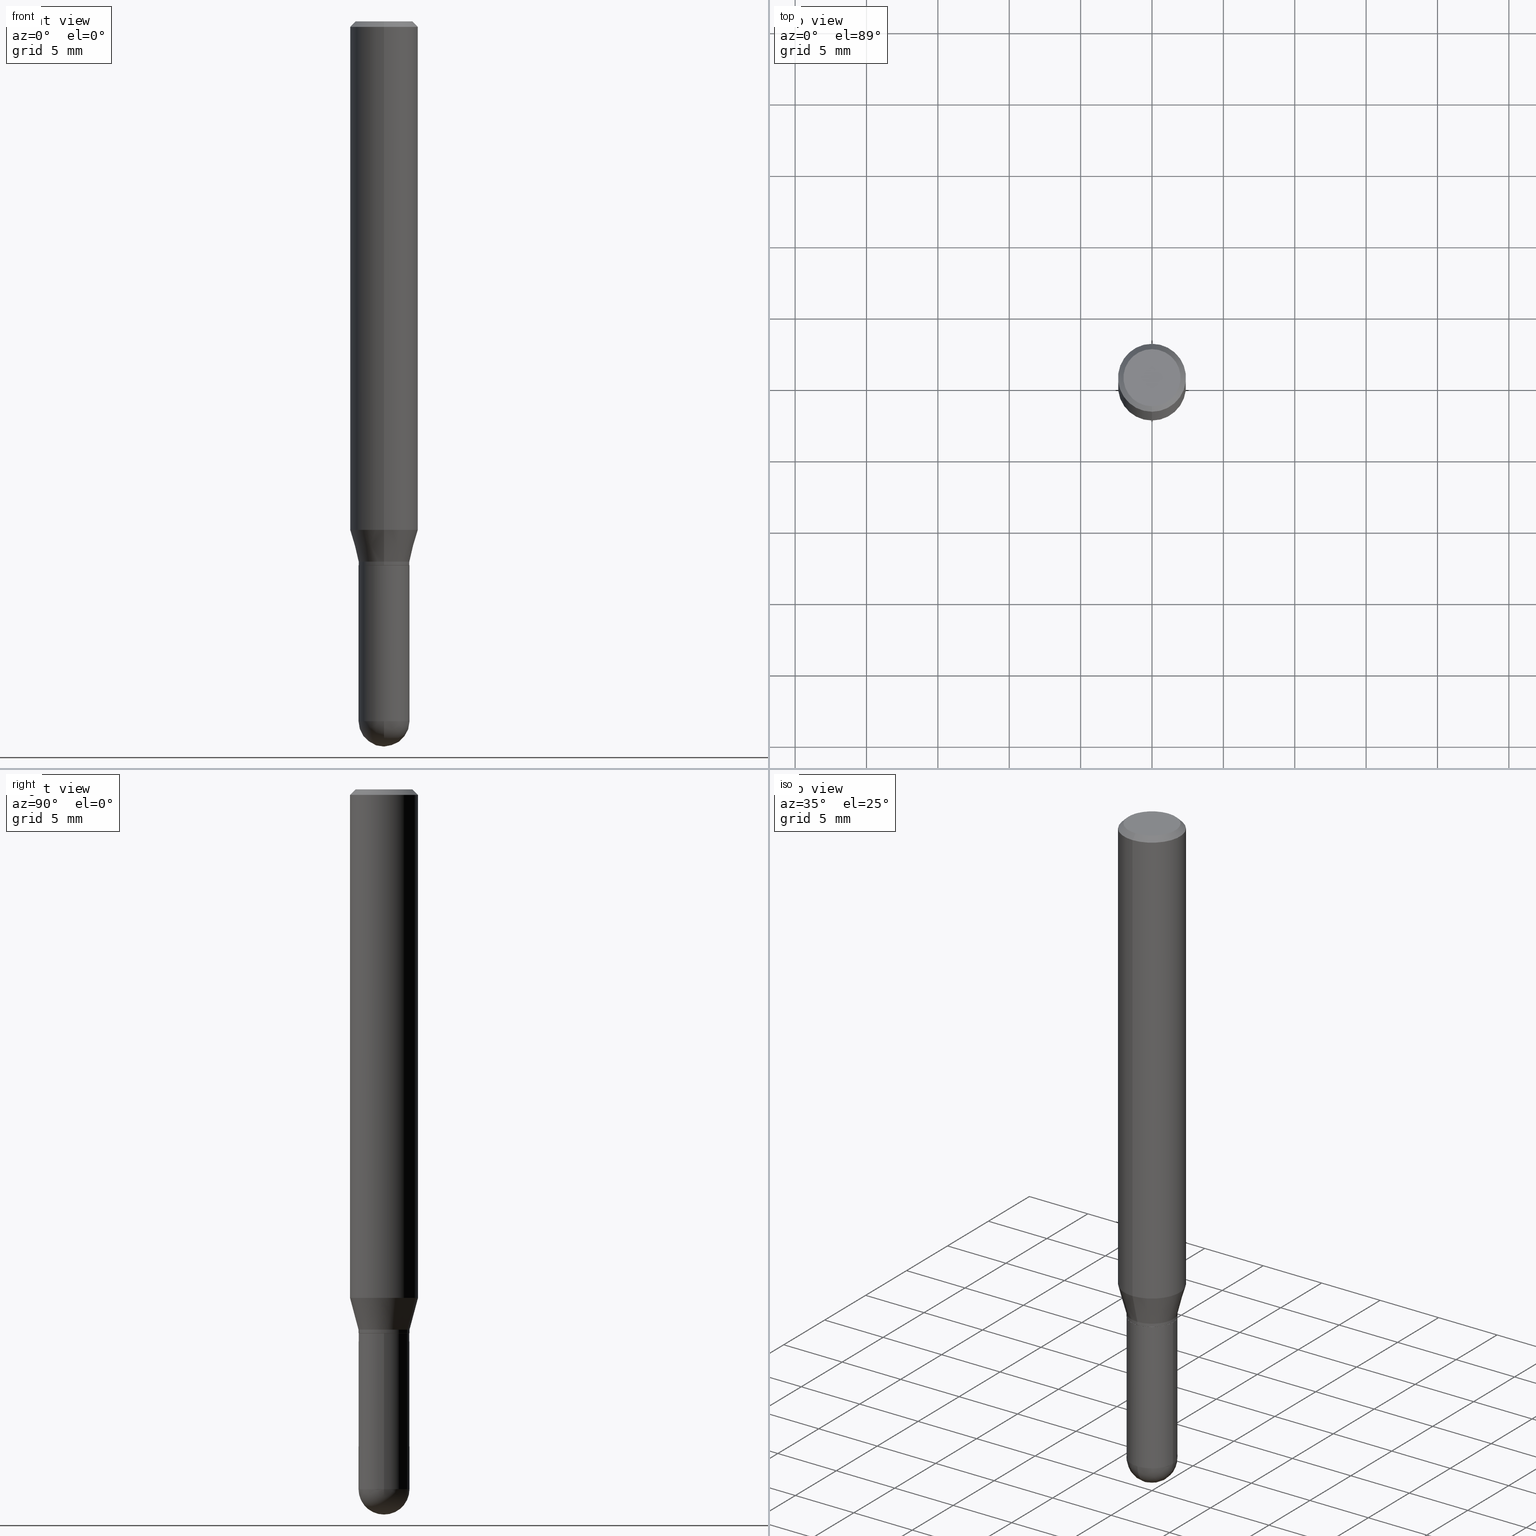
[diagram: canonical four-view strip — front | top / right | iso, engineering-drawing reading convention]
A machine part, canonical four-view strip (front | top / right | iso — engineering-drawing reading convention). The complete STEP part file that produces these views, byte-faithful:
ISO-10303-21;
HEADER;
FILE_DESCRIPTION (( 'STEP AP203' ),
    '1' );
FILE_NAME ('39518.STEP',
    '2024-03-08T12:51:50',
    ( '' ),
    ( '' ),
    'SwSTEP 2.0',
    'SolidWorks 2023',
    '' );
FILE_SCHEMA (( 'CONFIG_CONTROL_DESIGN' ));
ENDSEC;

DATA;
#1 = PERSON_AND_ORGANIZATION ( #86, #263 ) ;
#2 = AXIS2_PLACEMENT_3D ( 'NONE', #269, #119, #426 ) ;
#3 = LINE ( 'NONE', #44, #321 ) ;
#4 = DIRECTION ( 'NONE',  ( 1.000000000000000000, -6.982962677686273810E-15, 0.000000000000000000 ) ) ;
#5 = DIRECTION ( 'NONE',  ( -2.445022562880342820E-29, 3.492120384654201603E-15, 1.000000000000000000 ) ) ;
#6 = ORIENTED_EDGE ( 'NONE', *, *, #502, .F. ) ;
#7 = VECTOR ( 'NONE', #241, 39.37007874015748854 ) ;
#8 = DIRECTION ( 'NONE',  ( -6.982962677686265922E-15, -1.000000000000000000, 2.913971193241880372E-15 ) ) ;
#9 = APPROVAL_PERSON_ORGANIZATION ( #467, #54, #399 ) ;
#10 = CC_DESIGN_PERSON_AND_ORGANIZATION_ASSIGNMENT ( #143, #431, ( #236 ) ) ;
#11 = DIRECTION ( 'NONE',  ( -6.982962677686265133E-15, -1.000000000000000000, 3.885985766236506175E-15 ) ) ;
#12 = EDGE_CURVE ( 'NONE', #136, #407, #20, .T. ) ;
#13 = APPROVAL_PERSON_ORGANIZATION ( #477, #68, #318 ) ;
#14 = DIRECTION ( 'NONE',  ( 1.000000000000000000, -6.982962677686261189E-15, 0.000000000000000000 ) ) ;
#15 = CONICAL_SURFACE ( 'NONE', #131, 0.06980000000000005644, 0.7853981633974739252 ) ;
#16 = CALENDAR_DATE ( 2024, 8, 3 ) ;
#17 = CYLINDRICAL_SURFACE ( 'NONE', #503, 0.07030000000000004301 ) ;
#18 = CYLINDRICAL_SURFACE ( 'NONE', #87, 0.07029999999999984872 ) ;
#19 = CARTESIAN_POINT ( 'NONE',  ( 0.000000000000000000, 0.000000000000000000, 0.000000000000000000 ) ) ;
#20 = CIRCLE ( 'NONE', #434, 0.07029999999999998750 ) ;
#21 = AXIS2_PLACEMENT_3D ( 'NONE', #177, #306, #134 ) ;
#22 = PERSON_AND_ORGANIZATION ( #86, #263 ) ;
#23 = VERTEX_POINT ( 'NONE', #430 ) ;
#24 = CALENDAR_DATE ( 2024, 8, 3 ) ;
#25 = VERTEX_POINT ( 'NONE', #69 ) ;
#26 = ORIENTED_EDGE ( 'NONE', *, *, #115, .F. ) ;
#27 = PERSON_AND_ORGANIZATION_ROLE ( 'classification_officer' ) ;
#28 = ORIENTED_EDGE ( 'NONE', *, *, #308, .T. ) ;
#29 = EDGE_LOOP ( 'NONE', ( #383, #28, #189, #193 ) ) ;
#30 = CARTESIAN_POINT ( 'NONE',  ( 6.661338147751283383E-16, 0.09374999999999512890, -1.402483408562509304 ) ) ;
#31 = EDGE_LOOP ( 'NONE', ( #50, #47, #40, #425 ) ) ;
#32 = AXIS2_PLACEMENT_3D ( 'NONE', #91, #331, #14 ) ;
#33 = VECTOR ( 'NONE', #164, 39.37007874015748143 ) ;
#34 = DIRECTION ( 'NONE',  ( -2.445022562880342820E-29, 3.492120384654201603E-15, 1.000000000000000000 ) ) ;
#35 = PLANE ( 'NONE',  #311 ) ;
#36 = DIRECTION ( 'NONE',  ( -2.445468806185136597E-29, 3.491481338843145583E-15, 1.000000000000000000 ) ) ;
#37 = SECURITY_CLASSIFICATION_LEVEL ( 'unclassified' ) ;
#38 = CARTESIAN_POINT ( 'NONE',  ( -0.07030000000000004301, -5.487855230675816416E-15, -1.929699999999999971 ) ) ;
#39 = ORIENTED_EDGE ( 'NONE', *, *, #328, .F. ) ;
#40 = ORIENTED_EDGE ( 'NONE', *, *, #100, .T. ) ;
#41 = ADVANCED_FACE ( 'NONE', ( #256 ), #18, .T. ) ;
#42 = DIRECTION ( 'NONE',  ( 1.000000000000000000, -6.982962677686273810E-15, 0.000000000000000000 ) ) ;
#43 = FACE_OUTER_BOUND ( 'NONE', #509, .T. ) ;
#44 = CARTESIAN_POINT ( 'NONE',  ( -4.909022762413433696E-16, -0.07029999999999984872, 2.454960630411898539E-16 ) ) ;
#45 = AXIS2_PLACEMENT_3D ( 'NONE', #249, #370, #512 ) ;
#46 = DIRECTION ( 'NONE',  ( -4.937700262164674260E-15, -0.7071067811865632269, 0.7071067811865319186 ) ) ;
#47 = ORIENTED_EDGE ( 'NONE', *, *, #435, .T. ) ;
#48 = CARTESIAN_POINT ( 'NONE',  ( 4.909022762413921804E-16, 0.07029999999999332616, -1.929700000000000193 ) ) ;
#49 = EDGE_LOOP ( 'NONE', ( #447, #314, #124, #299 ) ) ;
#50 = ORIENTED_EDGE ( 'NONE', *, *, #262, .F. ) ;
#51 = AXIS2_PLACEMENT_3D ( 'NONE', #169, #332, #8 ) ;
#52 = FACE_OUTER_BOUND ( 'NONE', #147, .T. ) ;
#53 = MANIFOLD_SOLID_BREP ( 'Body-Move/Copy2[1]', #70 ) ;
#54 = APPROVAL ( #343, 'UNSPECIFIED' ) ;
#55 = CARTESIAN_POINT ( 'NONE',  ( 0.000000000000000000, 0.000000000000000000, 0.000000000000000000 ) ) ;
#56 = CIRCLE ( 'NONE', #348, 0.06980000000000005644 ) ;
#57 = ADVANCED_FACE ( 'NONE', ( #61 ), #137, .T. ) ;
#58 = APPROVAL_STATUS ( 'not_yet_approved' ) ;
#59 = ORIENTED_EDGE ( 'NONE', *, *, #105, .T. ) ;
#60 = COORDINATED_UNIVERSAL_TIME_OFFSET ( 5, 0, .BEHIND. ) ;
#61 = FACE_OUTER_BOUND ( 'NONE', #365, .T. ) ;
#62 = AXIS2_PLACEMENT_3D ( 'NONE', #192, #297, #208 ) ;
#63 = ADVANCED_FACE ( 'NONE', ( #379 ), #94, .T. ) ;
#64 = CARTESIAN_POINT ( 'NONE',  ( 0.000000000000000000, 0.000000000000000000, 0.000000000000000000 ) ) ;
#65 = CC_DESIGN_PERSON_AND_ORGANIZATION_ASSIGNMENT ( #139, #182, ( #445 ) ) ;
#66 = VERTEX_POINT ( 'NONE', #337 ) ;
#67 = CARTESIAN_POINT ( 'NONE',  ( 4.719021155295457704E-29, -6.737511539565617508E-15, -1.929699999999999971 ) ) ;
#68 = APPROVAL ( #427, 'UNSPECIFIED' ) ;
#69 = CARTESIAN_POINT ( 'NONE',  ( -6.546527510330871097E-16, -0.09375000000000005551, -0.01499999999999965250 ) ) ;
#70 = CLOSED_SHELL ( 'NONE', ( #452, #175, #395, #206, #292 ) ) ;
#71 = CC_DESIGN_APPROVAL ( #54, ( #236 ) ) ;
#72 = VERTEX_POINT ( 'NONE', #98 ) ;
#73 = ADVANCED_FACE ( 'NONE', ( #197 ), #77, .F. ) ;
#74 = DIRECTION ( 'NONE',  ( -2.445022562880343100E-29, 3.492120384654201603E-15, 1.000000000000000000 ) ) ;
#75 = ORIENTED_EDGE ( 'NONE', *, *, #105, .F. ) ;
#76 = CARTESIAN_POINT ( 'NONE',  ( 4.995115432393847559E-16, 0.07029999999999450577, -1.489999999999999991 ) ) ;
#77 = PLANE ( 'NONE',  #104 ) ;
#78 = CC_DESIGN_PERSON_AND_ORGANIZATION_ASSIGNMENT ( #22, #377, ( #487 ) ) ;
#79 = ORIENTED_EDGE ( 'NONE', *, *, #181, .F. ) ;
#80 = CARTESIAN_POINT ( 'NONE',  ( -4.909022762413059973E-16, -0.07030000000000491411, -1.489999999999999325 ) ) ;
#81 = EDGE_CURVE ( 'NONE', #508, #396, #216, .T. ) ;
#82 = CIRCLE ( 'NONE', #496, 0.07029999999999970994 ) ;
#83 = AXIS2_PLACEMENT_3D ( 'NONE', #203, #160, #162 ) ;
#84 = CARTESIAN_POINT ( 'NONE',  ( 3.667533844320514090E-29, -5.238180576981300827E-15, -1.499999999999999778 ) ) ;
#85 = ORIENTED_EDGE ( 'NONE', *, *, #148, .T. ) ;
#86 = PERSON ( 'UNSPECIFIED', 'UNSPECIFIED', 'UNSPECIFIED', ('UNSPECIFIED'), ('UNSPECIFIED'), ('UNSPECIFIED') ) ;
#87 = AXIS2_PLACEMENT_3D ( 'NONE', #415, #334, #423 ) ;
#88 = CONICAL_SURFACE ( 'NONE', #130, 0.07029999999999970994, 0.2617993877991510732 ) ;
#89 = AXIS2_PLACEMENT_3D ( 'NONE', #247, #214, #374 ) ;
#90 = EDGE_CURVE ( 'NONE', #396, #508, #209, .T. ) ;
#91 = CARTESIAN_POINT ( 'NONE',  ( 4.719021155295457704E-29, -6.737511539565617508E-15, -1.929699999999999971 ) ) ;
#92 = EDGE_CURVE ( 'NONE', #25, #195, #288, .T. ) ;
#93 = DIRECTION ( 'NONE',  ( -6.982962677686265922E-15, -1.000000000000000000, 3.885985766236521163E-15 ) ) ;
#94 = CONICAL_SURFACE ( 'NONE', #224, 0.06980000000000005644, 0.7853981633974739252 ) ;
#95 = AXIS2_PLACEMENT_3D ( 'NONE', #146, #36, #468 ) ;
#96 = DIMENSIONAL_EXPONENTS ( 1.000000000000000000, 0.000000000000000000, 0.000000000000000000, 0.000000000000000000, 0.000000000000000000, 0.000000000000000000, 0.000000000000000000 ) ;
#97 = LENGTH_MEASURE_WITH_UNIT ( LENGTH_MEASURE( 0.02539999999999999897 ), #223 );
#98 = CARTESIAN_POINT ( 'NONE',  ( 6.022805309504406221E-16, 0.07875000000000001443, -2.531073514825954590E-16 ) ) ;
#99 = FACE_OUTER_BOUND ( 'NONE', #29, .T. ) ;
#100 = EDGE_CURVE ( 'NONE', #66, #210, #287, .T. ) ;
#101 = DIRECTION ( 'NONE',  ( -6.982962677686265922E-15, -1.000000000000000000, 3.913822340493210566E-15 ) ) ;
#102 = ORIENTED_EDGE ( 'NONE', *, *, #411, .F. ) ;
#103 = DIRECTION ( 'NONE',  ( -1.000000000000000000, 6.982962677686265922E-15, -4.876176775795935793E-29 ) ) ;
#104 = AXIS2_PLACEMENT_3D ( 'NONE', #204, #506, #401 ) ;
#105 = EDGE_CURVE ( 'NONE', #429, #136, #448, .T. ) ;
#106 = AXIS2_PLACEMENT_3D ( 'NONE', #419, #219, #381 ) ;
#107 = ORIENTED_EDGE ( 'NONE', *, *, #435, .F. ) ;
#108 = CARTESIAN_POINT ( 'NONE',  ( -6.546527510330875041E-16, -0.09375000000000001388, 3.273862860613314496E-16 ) ) ;
#109 = SHAPE_DEFINITION_REPRESENTATION ( #413, #305 ) ;
#110 = VERTEX_POINT ( 'NONE', #397 ) ;
#111 = DIRECTION ( 'NONE',  ( -2.445022562880343100E-29, 3.492120384654201603E-15, 1.000000000000000000 ) ) ;
#112 = FACE_OUTER_BOUND ( 'NONE', #261, .T. ) ;
#113 = DIRECTION ( 'NONE',  ( -1.000000000000000000, 7.105427357601001070E-15, -4.926315508542082329E-29 ) ) ;
#114 = DIRECTION ( 'NONE',  ( -2.445022562880343100E-29, 3.492120384654201603E-15, 1.000000000000000000 ) ) ;
#115 = EDGE_CURVE ( 'NONE', #66, #187, #82, .T. ) ;
#116 = LINE ( 'NONE', #442, #199 ) ;
#117 = ORIENTED_EDGE ( 'NONE', *, *, #125, .F. ) ;
#118 = ORIENTED_EDGE ( 'NONE', *, *, #490, .F. ) ;
#119 = DIRECTION ( 'NONE',  ( -1.000000000000000000, 6.982962677686265922E-15, -4.883557194083112340E-29 ) ) ;
#120 = APPROVAL_DATE_TIME ( #230, #68 ) ;
#121 = CIRCLE ( 'NONE', #95, 0.07030000000000004301 ) ;
#122 = EDGE_LOOP ( 'NONE', ( #295, #475, #266, #271 ) ) ;
#123 = ADVANCED_FACE ( 'NONE', ( #112 ), #272, .F. ) ;
#124 = ORIENTED_EDGE ( 'NONE', *, *, #354, .F. ) ;
#125 = EDGE_CURVE ( 'NONE', #407, #136, #257, .T. ) ;
#126 = FACE_OUTER_BOUND ( 'NONE', #122, .T. ) ;
#127 = CARTESIAN_POINT ( 'NONE',  ( 4.930690017322777259E-29, -6.926034971227925253E-15, -2.000000000000000000 ) ) ;
#128 = AXIS2_PLACEMENT_3D ( 'NONE', #291, #245, #11 ) ;
#129 = CIRCLE ( 'NONE', #21, 0.06980000000000005644 ) ;
#130 = AXIS2_PLACEMENT_3D ( 'NONE', #489, #369, #372 ) ;
#131 = AXIS2_PLACEMENT_3D ( 'NONE', #410, #371, #207 ) ;
#132 = CARTESIAN_POINT ( 'NONE',  ( 3.643083618691710256E-29, -5.203259373134758290E-15, -1.489999999999999769 ) ) ;
#133 = EDGE_CURVE ( 'NONE', #210, #286, #384, .T. ) ;
#134 = DIRECTION ( 'NONE',  ( -6.982962677686265922E-15, -1.000000000000000000, 3.913822340493210566E-15 ) ) ;
#135 = DATE_AND_TIME ( #16, #394 ) ;
#136 = VERTEX_POINT ( 'NONE', #300 ) ;
#137 = CYLINDRICAL_SURFACE ( 'NONE', #179, 0.09375000000000001388 ) ;
#138 = CIRCLE ( 'NONE', #144, 0.07029999999999970994 ) ;
#139 = PERSON_AND_ORGANIZATION ( #86, #263 ) ;
#140 = DIRECTION ( 'NONE',  ( 1.000000000000000000, -6.982962677686265922E-15, 4.883557194083112340E-29 ) ) ;
#141 = EDGE_CURVE ( 'NONE', #286, #195, #455, .T. ) ;
#142 = CARTESIAN_POINT ( 'NONE',  ( -0.07030000000000007077, -5.487855230675816416E-15, -1.499999999999999778 ) ) ;
#143 = PERSON_AND_ORGANIZATION ( #86, #263 ) ;
#144 = AXIS2_PLACEMENT_3D ( 'NONE', #132, #307, #93 ) ;
#145 = ORIENTED_EDGE ( 'NONE', *, *, #441, .T. ) ;
#146 = CARTESIAN_POINT ( 'NONE',  ( 4.719021155295457704E-29, -6.737511539565617508E-15, -1.929699999999999971 ) ) ;
#147 = EDGE_LOOP ( 'NONE', ( #313, #102, #357, #145 ) ) ;
#148 = EDGE_CURVE ( 'NONE', #243, #110, #320, .T. ) ;
#149 = CARTESIAN_POINT ( 'NONE',  ( -5.917179523077944868E-16, -0.07875000000000001443, 2.969016091004413093E-16 ) ) ;
#150 = ORIENTED_EDGE ( 'NONE', *, *, #502, .T. ) ;
#151 = AXIS2_PLACEMENT_3D ( 'NONE', #479, #285, #424 ) ;
#152 = CARTESIAN_POINT ( 'NONE',  ( -0.07030000000000004301, 4.995115432393507363E-16, -3.458011368449201672E-30 ) ) ;
#153 = AXIS2_PLACEMENT_3D ( 'NONE', #463, #456, #464 ) ;
#154 = CALENDAR_DATE ( 2024, 8, 3 ) ;
#155 = VECTOR ( 'NONE', #294, 39.37007874015748143 ) ;
#156 = ADVANCED_FACE ( 'NONE', ( #174 ), #317, .T. ) ;
#157 = CARTESIAN_POINT ( 'NONE',  ( 3.667533844320509501E-31, -5.238180576981294836E-17, -0.01499999999999997863 ) ) ;
#158 = CARTESIAN_POINT ( 'NONE',  ( 4.959588295605870128E-16, 0.06979999999999481064, -1.500000000000000222 ) ) ;
#159 = DIRECTION ( 'NONE',  ( -6.982962677686265922E-15, -1.000000000000000000, 3.483106191921935160E-15 ) ) ;
#160 = DIRECTION ( 'NONE',  ( -2.445468806185136597E-29, 3.491481338843145583E-15, 1.000000000000000000 ) ) ;
#161 = CARTESIAN_POINT ( 'NONE',  ( -4.874107949024650610E-16, -0.06980000000000530225, -1.499999999999999556 ) ) ;
#162 = DIRECTION ( 'NONE',  ( 1.000000000000000000, -6.982962677686268288E-15, 4.876176775795936353E-29 ) ) ;
#163 = DIRECTION ( 'NONE',  ( 6.982962677686265922E-15, 1.000000000000000000, -3.885985766236503808E-15 ) ) ;
#164 = DIRECTION ( 'NONE',  ( 1.839019923739605837E-15, 0.2588190451025257355, 0.9659258262890669799 ) ) ;
#165 = AXIS2_PLACEMENT_3D ( 'NONE', #366, #402, #163 ) ;
#166 = CC_DESIGN_APPROVAL ( #344, ( #445 ) ) ;
#167 = CARTESIAN_POINT ( 'NONE',  ( 6.661338147750938256E-16, 0.09375000000000001388, -3.273862860613314496E-16 ) ) ;
#168 = DESIGN_CONTEXT ( 'detailed design', #254, 'design' ) ;
#169 = CARTESIAN_POINT ( 'NONE',  ( 3.429103578000664545E-29, -4.897640900180445107E-15, -1.402483408562508860 ) ) ;
#170 = DIRECTION ( 'NONE',  ( 1.000000000000000000, -6.982962677686261189E-15, 0.000000000000000000 ) ) ;
#171 = DIRECTION ( 'NONE',  ( 6.982962677686266711E-15, 1.000000000000000000, 0.000000000000000000 ) ) ;
#172 = LINE ( 'NONE', #108, #376 ) ;
#173 = CONICAL_SURFACE ( 'NONE', #45, 0.09375000000000001388, 0.7853981633974480570 ) ;
#174 = FACE_OUTER_BOUND ( 'NONE', #281, .T. ) ;
#175 = ADVANCED_FACE ( 'NONE', ( #417 ), #510, .T. ) ;
#176 = FACE_OUTER_BOUND ( 'NONE', #392, .T. ) ;
#177 = CARTESIAN_POINT ( 'NONE',  ( 3.667533844320514090E-29, -5.238180576981300827E-15, -1.499999999999999778 ) ) ;
#178 = CARTESIAN_POINT ( 'NONE',  ( 0.07030000000000005689, -5.728124284506063124E-15, -1.499999999999999778 ) ) ;
#179 = AXIS2_PLACEMENT_3D ( 'NONE', #55, #303, #217 ) ;
#180 = CIRCLE ( 'NONE', #298, 0.07030000000000004301 ) ;
#181 = EDGE_CURVE ( 'NONE', #235, #396, #438, .T. ) ;
#182 = PERSON_AND_ORGANIZATION_ROLE ( 'creator' ) ;
#183 = DIRECTION ( 'NONE',  ( 2.438088387897960049E-29, -3.491481338843145188E-15, -1.000000000000000000 ) ) ;
#184 = COORDINATED_UNIVERSAL_TIME_OFFSET ( 5, 0, .BEHIND. ) ;
#185 = ORIENTED_EDGE ( 'NONE', *, *, #354, .T. ) ;
#186 = UNCERTAINTY_MEASURE_WITH_UNIT (LENGTH_MEASURE( 1.000000000000000082E-05 ), #255, 'distance_accuracy_value', 'NONE');
#187 = VERTEX_POINT ( 'NONE', #476 ) ;
#188 = EDGE_CURVE ( 'NONE', #237, #72, #296, .T. ) ;
#189 = ORIENTED_EDGE ( 'NONE', *, *, #92, .T. ) ;
#190 = LOCAL_TIME ( 7, 51, 50.00000000000000000, #465 ) ;
#191 = CARTESIAN_POINT ( 'NONE',  ( 3.668203209277704335E-29, -5.237222008264717388E-15, -1.499999999999999778 ) ) ;
#192 = CARTESIAN_POINT ( 'NONE',  ( 3.429103578000664545E-29, -4.897640900180445107E-15, -1.402483408562508860 ) ) ;
#193 = ORIENTED_EDGE ( 'NONE', *, *, #363, .F. ) ;
#194 = DATE_AND_TIME ( #471, #304 ) ;
#195 = VERTEX_POINT ( 'NONE', #329 ) ;
#196 = ORIENTED_EDGE ( 'NONE', *, *, #290, .F. ) ;
#197 = FACE_OUTER_BOUND ( 'NONE', #361, .T. ) ;
#198 = CARTESIAN_POINT ( 'NONE',  ( 3.666311333039074543E-29, -5.236434516788973779E-15, -1.499500000000000055 ) ) ;
#199 = VECTOR ( 'NONE', #326, 39.37007874015748143 ) ;
#200 = AXIS2_PLACEMENT_3D ( 'NONE', #499, #140, #171 ) ;
#201 = CC_DESIGN_APPROVAL ( #68, ( #497 ) ) ;
#202 = DIRECTION ( 'NONE',  ( -6.982962677686265922E-15, -1.000000000000000000, 3.885985766236521163E-15 ) ) ;
#203 = CARTESIAN_POINT ( 'NONE',  ( 0.000000000000000000, 0.000000000000000000, 0.000000000000000000 ) ) ;
#204 = CARTESIAN_POINT ( 'NONE',  ( 5.499083108677934443E-16, 0.07875000000000001443, -2.640559158870569216E-16 ) ) ;
#205 = SPHERICAL_SURFACE ( 'NONE', #165, 0.07030000000000002913 ) ;
#206 = ADVANCED_FACE ( 'NONE', ( #43 ), #205, .T. ) ;
#207 = DIRECTION ( 'NONE',  ( -6.982962677686265922E-15, -1.000000000000000000, 3.913822340493210566E-15 ) ) ;
#208 = DIRECTION ( 'NONE',  ( -6.982962677686265922E-15, -1.000000000000000000, 2.913971193241880372E-15 ) ) ;
#209 = CIRCLE ( 'NONE', #404, 0.07030000000000005689 ) ;
#210 = VERTEX_POINT ( 'NONE', #485 ) ;
#211 = AXIS2_PLACEMENT_3D ( 'NONE', #19, #498, #301 ) ;
#212 = EDGE_CURVE ( 'NONE', #23, #407, #362, .T. ) ;
#213 = DIRECTION ( 'NONE',  ( -2.445468806185136597E-29, 3.491481338843145583E-15, 1.000000000000000000 ) ) ;
#214 = DIRECTION ( 'NONE',  ( -2.445022562880343100E-29, 3.492120384654201603E-15, 1.000000000000000000 ) ) ;
#215 = MECHANICAL_CONTEXT ( 'NONE', #218, 'mechanical' ) ;
#216 = CIRCLE ( 'NONE', #242, 0.07030000000000005689 ) ;
#217 = DIRECTION ( 'NONE',  ( -6.982962677686265922E-15, -1.000000000000000000, 3.492120384654201603E-15 ) ) ;
#218 = APPLICATION_CONTEXT ( 'configuration controlled 3d designs of mechanical parts and assemblies' ) ;
#219 = DIRECTION ( 'NONE',  ( -2.445022562880343100E-29, 3.492120384654201603E-15, 1.000000000000000000 ) ) ;
#220 = APPLICATION_PROTOCOL_DEFINITION ( 'international standard', 'config_control_design', 1994, #254 ) ;
#221 =( NAMED_UNIT ( * ) PLANE_ANGLE_UNIT ( ) SI_UNIT ( $, .RADIAN. ) );
#222 = CARTESIAN_POINT ( 'NONE',  ( 3.667533844320514090E-29, -5.238180576981300827E-15, -1.499999999999999778 ) ) ;
#223 =( LENGTH_UNIT ( ) NAMED_UNIT ( * ) SI_UNIT ( $, .METRE. ) );
#224 = AXIS2_PLACEMENT_3D ( 'NONE', #222, #461, #386 ) ;
#225 = VECTOR ( 'NONE', #229, 39.37007874015748143 ) ;
#226 = COORDINATED_UNIVERSAL_TIME_OFFSET ( 5, 0, .BEHIND. ) ;
#227 = ORIENTED_EDGE ( 'NONE', *, *, #90, .T. ) ;
#228 = CARTESIAN_POINT ( 'NONE',  ( 4.719021155295457704E-29, -6.737511539565617508E-15, -1.929699999999999971 ) ) ;
#229 = DIRECTION ( 'NONE',  ( -2.445022562880342820E-29, 3.492120384654201603E-15, 1.000000000000000000 ) ) ;
#230 = DATE_AND_TIME ( #345, #190 ) ;
#231 = ADVANCED_FACE ( 'NONE', ( #126 ), #88, .T. ) ;
#232 = DIRECTION ( 'NONE',  ( -2.445468806185136597E-29, 3.491481338843145583E-15, 1.000000000000000000 ) ) ;
#233 = DATE_AND_TIME ( #24, #459 ) ;
#234 = ORIENTED_EDGE ( 'NONE', *, *, #338, .T. ) ;
#235 = VERTEX_POINT ( 'NONE', #38 ) ;
#236 = PRODUCT_DEFINITION_FORMATION_WITH_SPECIFIED_SOURCE ( 'ANY', '', #487, .NOT_KNOWN. ) ;
#237 = VERTEX_POINT ( 'NONE', #149 ) ;
#238 = ORIENTED_EDGE ( 'NONE', *, *, #181, .T. ) ;
#239 = ORIENTED_EDGE ( 'NONE', *, *, #403, .T. ) ;
#240 = MANIFOLD_SOLID_BREP ( 'Body-Move/Copy2[2]', #393 ) ;
#241 = DIRECTION ( 'NONE',  ( -1.807323732225335661E-15, -0.2588190451025189631, 0.9659258262890687563 ) ) ;
#242 = AXIS2_PLACEMENT_3D ( 'NONE', #443, #437, #42 ) ;
#243 = VERTEX_POINT ( 'NONE', #472 ) ;
#244 = ORIENTED_EDGE ( 'NONE', *, *, #441, .F. ) ;
#245 = DIRECTION ( 'NONE',  ( -2.445022562880343100E-29, 3.492120384654201603E-15, 1.000000000000000000 ) ) ;
#246 = CARTESIAN_POINT ( 'NONE',  ( -5.353897400011380051E-46, 7.646740987903862261E-32, 2.189712880892295595E-17 ) ) ;
#247 = CARTESIAN_POINT ( 'NONE',  ( 0.000000000000000000, 0.000000000000000000, 0.000000000000000000 ) ) ;
#248 = FACE_OUTER_BOUND ( 'NONE', #279, .T. ) ;
#249 = CARTESIAN_POINT ( 'NONE',  ( 3.667533844320509501E-31, -5.238180576981294836E-17, -0.01499999999999997863 ) ) ;
#250 = AXIS2_PLACEMENT_3D ( 'NONE', #282, #390, #444 ) ;
#251 = AXIS2_PLACEMENT_3D ( 'NONE', #341, #457, #460 ) ;
#252 = EDGE_CURVE ( 'NONE', #136, #66, #3, .T. ) ;
#253 = DIRECTION ( 'NONE',  ( -2.445022562880342820E-29, 3.492120384654201603E-15, 1.000000000000000000 ) ) ;
#254 = APPLICATION_CONTEXT ( 'configuration controlled 3d designs of mechanical parts and assemblies' ) ;
#255 =( CONVERSION_BASED_UNIT ( 'INCH', #97 ) LENGTH_UNIT ( ) NAMED_UNIT ( #96 ) );
#256 = FACE_OUTER_BOUND ( 'NONE', #408, .T. ) ;
#257 = CIRCLE ( 'NONE', #128, 0.07029999999999998750 ) ;
#258 = APPROVAL_PERSON_ORGANIZATION ( #382, #344, #260 ) ;
#259 = EDGE_CURVE ( 'NONE', #110, #508, #116, .T. ) ;
#260 = APPROVAL_ROLE ( '' ) ;
#261 = EDGE_LOOP ( 'NONE', ( #6, #118 ) ) ;
#262 = EDGE_CURVE ( 'NONE', #187, #286, #274, .T. ) ;
#263 = ORGANIZATION ( 'UNSPECIFIED', 'UNSPECIFIED', '' ) ;
#264 = ADVANCED_FACE ( 'NONE', ( #248 ), #15, .T. ) ;
#265 = ORIENTED_EDGE ( 'NONE', *, *, #133, .T. ) ;
#266 = ORIENTED_EDGE ( 'NONE', *, *, #133, .F. ) ;
#267 = ORIENTED_EDGE ( 'NONE', *, *, #81, .T. ) ;
#268 = DIRECTION ( 'NONE',  ( -2.445022562880342820E-29, 3.492120384654201603E-15, 1.000000000000000000 ) ) ;
#269 = CARTESIAN_POINT ( 'NONE',  ( 4.755767650741496407E-29, -6.684888466606255625E-15, -1.929699999999999971 ) ) ;
#270 = DATE_TIME_ROLE ( 'creation_date' ) ;
#271 = ORIENTED_EDGE ( 'NONE', *, *, #100, .F. ) ;
#272 = PLANE ( 'NONE',  #276 ) ;
#273 = DIRECTION ( 'NONE',  ( -6.982962677686265133E-15, -1.000000000000000000, 3.885985766236506175E-15 ) ) ;
#274 = LINE ( 'NONE', #76, #33 ) ;
#275 = ORIENTED_EDGE ( 'NONE', *, *, #428, .F. ) ;
#276 = AXIS2_PLACEMENT_3D ( 'NONE', #84, #5, #409 ) ;
#277 = ORIENTED_EDGE ( 'NONE', *, *, #488, .T. ) ;
#278 = LOCAL_TIME ( 7, 51, 50.00000000000000000, #226 ) ;
#279 = EDGE_LOOP ( 'NONE', ( #150, #469, #470, #75 ) ) ;
#280 = ADVANCED_FACE ( 'NONE', ( #368 ), #453, .T. ) ;
#281 = EDGE_LOOP ( 'NONE', ( #265, #481, #389, #39 ) ) ;
#282 = CARTESIAN_POINT ( 'NONE',  ( -5.353897400011380051E-46, 7.646740987903862261E-32, 2.189712880892295595E-17 ) ) ;
#283 = PERSON_AND_ORGANIZATION ( #86, #263 ) ;
#284 = ORIENTED_EDGE ( 'NONE', *, *, #12, .T. ) ;
#285 = DIRECTION ( 'NONE',  ( -2.445022562880343100E-29, 3.492120384654201603E-15, 1.000000000000000000 ) ) ;
#286 = VERTEX_POINT ( 'NONE', #30 ) ;
#287 = LINE ( 'NONE', #80, #7 ) ;
#288 = CIRCLE ( 'NONE', #310, 0.09375000000000001388 ) ;
#289 = CIRCLE ( 'NONE', #200, 0.07030000000000002913 ) ;
#290 = EDGE_CURVE ( 'NONE', #422, #243, #360, .T. ) ;
#291 = CARTESIAN_POINT ( 'NONE',  ( 3.666311333039074543E-29, -5.236434516788973779E-15, -1.499500000000000055 ) ) ;
#292 = ADVANCED_FACE ( 'NONE', ( #325 ), #486, .T. ) ;
#293 = ORIENTED_EDGE ( 'NONE', *, *, #148, .F. ) ;
#294 = DIRECTION ( 'NONE',  ( 4.937700262164546464E-15, 0.7071067811865449082, -0.7071067811865501263 ) ) ;
#295 = ORIENTED_EDGE ( 'NONE', *, *, #115, .T. ) ;
#296 = CIRCLE ( 'NONE', #250, 0.07875000000000001443 ) ;
#297 = DIRECTION ( 'NONE',  ( -2.445022562880343100E-29, 3.492120384654201603E-15, 1.000000000000000000 ) ) ;
#298 = AXIS2_PLACEMENT_3D ( 'NONE', #67, #232, #351 ) ;
#299 = ORIENTED_EDGE ( 'NONE', *, *, #338, .F. ) ;
#300 = CARTESIAN_POINT ( 'NONE',  ( -4.909022762413074764E-16, -0.07030000000000519167, -1.499499999999999611 ) ) ;
#301 = DIRECTION ( 'NONE',  ( 1.000000000000000000, 0.000000000000000000, 0.000000000000000000 ) ) ;
#302 =( NAMED_UNIT ( * ) SI_UNIT ( $, .STERADIAN. ) SOLID_ANGLE_UNIT ( ) );
#303 = DIRECTION ( 'NONE',  ( -2.445022562880343100E-29, 3.492120384654201603E-15, 1.000000000000000000 ) ) ;
#304 = LOCAL_TIME ( 7, 51, 50.00000000000000000, #184 ) ;
#305 = ADVANCED_BREP_SHAPE_REPRESENTATION ( '39518', ( #53, #240, #211 ), #387 ) ;
#306 = DIRECTION ( 'NONE',  ( -2.445022562880343100E-29, 3.492120384654201603E-15, 1.000000000000000000 ) ) ;
#307 = DIRECTION ( 'NONE',  ( -2.445022562880343100E-29, 3.492120384654201603E-15, 1.000000000000000000 ) ) ;
#308 = EDGE_CURVE ( 'NONE', #237, #25, #364, .T. ) ;
#309 = DATE_AND_TIME ( #154, #278 ) ;
#310 = AXIS2_PLACEMENT_3D ( 'NONE', #157, #74, #159 ) ;
#311 = AXIS2_PLACEMENT_3D ( 'NONE', #342, #183, #103 ) ;
#312 = CC_DESIGN_SECURITY_CLASSIFICATION ( #497, ( #236 ) ) ;
#313 = ORIENTED_EDGE ( 'NONE', *, *, #308, .F. ) ;
#314 = ORIENTED_EDGE ( 'NONE', *, *, #290, .T. ) ;
#315 = VERTEX_POINT ( 'NONE', #48 ) ;
#316 = ORIENTED_EDGE ( 'NONE', *, *, #125, .T. ) ;
#317 = CYLINDRICAL_SURFACE ( 'NONE', #151, 0.09375000000000001388 ) ;
#318 = APPROVAL_ROLE ( '' ) ;
#319 = ADVANCED_FACE ( 'NONE', ( #330 ), #451, .T. ) ;
#320 = CIRCLE ( 'NONE', #32, 0.07030000000000004301 ) ;
#321 = VECTOR ( 'NONE', #34, 39.37007874015748143 ) ;
#322 = EDGE_LOOP ( 'NONE', ( #284, #398, #26, #504 ) ) ;
#323 = DIRECTION ( 'NONE',  ( -2.445468806185136877E-29, 3.491481338843145188E-15, 1.000000000000000000 ) ) ;
#324 = APPROVAL_DATE_TIME ( #194, #54 ) ;
#325 = FACE_OUTER_BOUND ( 'NONE', #505, .T. ) ;
#326 = DIRECTION ( 'NONE',  ( -2.445468806185136877E-29, 3.491481338843145188E-15, 1.000000000000000000 ) ) ;
#327 = CARTESIAN_POINT ( 'NONE',  ( -6.431716872910806895E-16, -0.09375000000000005551, -0.01499999999999965250 ) ) ;
#328 = EDGE_CURVE ( 'NONE', #210, #25, #172, .T. ) ;
#329 = CARTESIAN_POINT ( 'NONE',  ( 6.661338147751283383E-16, 0.09374999999999994449, -0.01500000000000030476 ) ) ;
#330 = FACE_OUTER_BOUND ( 'NONE', #322, .T. ) ;
#331 = DIRECTION ( 'NONE',  ( -2.445468806185136597E-29, 3.491481338843145583E-15, 1.000000000000000000 ) ) ;
#332 = DIRECTION ( 'NONE',  ( -2.445022562880343100E-29, 3.492120384654201603E-15, 1.000000000000000000 ) ) ;
#333 = APPLICATION_PROTOCOL_DEFINITION ( 'international standard', 'config_control_design', 1994, #218 ) ;
#334 = DIRECTION ( 'NONE',  ( -2.445022562880343100E-29, 3.492120384654201603E-15, 1.000000000000000000 ) ) ;
#335 = CARTESIAN_POINT ( 'NONE',  ( 4.995115432393871225E-16, 0.07029999999999476945, -1.499500000000000277 ) ) ;
#336 = DIRECTION ( 'NONE',  ( -2.445022562880343100E-29, 3.492120384654201603E-15, 1.000000000000000000 ) ) ;
#337 = CARTESIAN_POINT ( 'NONE',  ( -4.909022762413059973E-16, -0.07030000000000491411, -1.489999999999999325 ) ) ;
#338 = EDGE_CURVE ( 'NONE', #315, #235, #180, .T. ) ;
#339 = APPROVAL_DATE_TIME ( #135, #344 ) ;
#340 = AXIS2_PLACEMENT_3D ( 'NONE', #246, #111, #462 ) ;
#341 = CARTESIAN_POINT ( 'NONE',  ( 3.667533844320509501E-31, -5.238180576981294836E-17, -0.01499999999999997863 ) ) ;
#342 = CARTESIAN_POINT ( 'NONE',  ( 4.909022762413816294E-16, 0.07029999999999482496, -1.500000000000000222 ) ) ;
#343 = APPROVAL_STATUS ( 'not_yet_approved' ) ;
#344 = APPROVAL ( #58, 'UNSPECIFIED' ) ;
#345 = CALENDAR_DATE ( 2024, 8, 3 ) ;
#346 = ORIENTED_EDGE ( 'NONE', *, *, #90, .F. ) ;
#347 = ORIENTED_EDGE ( 'NONE', *, *, #259, .T. ) ;
#348 = AXIS2_PLACEMENT_3D ( 'NONE', #418, #336, #101 ) ;
#349 = CC_DESIGN_PERSON_AND_ORGANIZATION_ASSIGNMENT ( #1, #27, ( #497 ) ) ;
#350 = CARTESIAN_POINT ( 'NONE',  ( 4.755767650741496407E-29, -6.684888466606255625E-15, -1.929699999999999971 ) ) ;
#351 = DIRECTION ( 'NONE',  ( 1.000000000000000000, -6.982962677686261189E-15, 0.000000000000000000 ) ) ;
#352 = DATE_TIME_ROLE ( 'classification_date' ) ;
#353 = CARTESIAN_POINT ( 'NONE',  ( 3.643083618691710256E-29, -5.203259373134758290E-15, -1.489999999999999769 ) ) ;
#354 = EDGE_CURVE ( 'NONE', #235, #243, #121, .T. ) ;
#355 = ORIENTED_EDGE ( 'NONE', *, *, #141, .F. ) ;
#356 = DIRECTION ( 'NONE',  ( -2.445468806185136597E-29, 3.491481338843145583E-15, 1.000000000000000000 ) ) ;
#357 = ORIENTED_EDGE ( 'NONE', *, *, #363, .T. ) ;
#358 = EDGE_CURVE ( 'NONE', #286, #210, #474, .T. ) ;
#359 = COORDINATED_UNIVERSAL_TIME_OFFSET ( 5, 0, .BEHIND. ) ;
#360 = CIRCLE ( 'NONE', #449, 0.07030000000000002913 ) ;
#361 = EDGE_LOOP ( 'NONE', ( #478, #501 ) ) ;
#362 = LINE ( 'NONE', #158, #458 ) ;
#363 = EDGE_CURVE ( 'NONE', #72, #195, #414, .T. ) ;
#364 = LINE ( 'NONE', #327, #412 ) ;
#365 = EDGE_LOOP ( 'NONE', ( #355, #483, #507, #244 ) ) ;
#366 = CARTESIAN_POINT ( 'NONE',  ( 4.755767650741496407E-29, -6.684888466606255625E-15, -1.929699999999999971 ) ) ;
#367 = CIRCLE ( 'NONE', #406, 0.07030000000000004301 ) ;
#368 = FACE_OUTER_BOUND ( 'NONE', #31, .T. ) ;
#369 = DIRECTION ( 'NONE',  ( -2.445022562880343100E-29, 3.492120384654201603E-15, 1.000000000000000000 ) ) ;
#370 = DIRECTION ( 'NONE',  ( 2.445022562880343100E-29, -3.492120384654201603E-15, -1.000000000000000000 ) ) ;
#371 = DIRECTION ( 'NONE',  ( -2.445022562880343100E-29, 3.492120384654201603E-15, 1.000000000000000000 ) ) ;
#372 = DIRECTION ( 'NONE',  ( -6.982962677686265922E-15, -1.000000000000000000, 3.885985766236521163E-15 ) ) ;
#373 = DIRECTION ( 'NONE',  ( -2.445468806185136597E-29, 3.491481338843145583E-15, 1.000000000000000000 ) ) ;
#374 = DIRECTION ( 'NONE',  ( -6.982962677686265133E-15, -1.000000000000000000, 3.492120384654201603E-15 ) ) ;
#375 = VECTOR ( 'NONE', #323, 39.37007874015748143 ) ;
#376 = VECTOR ( 'NONE', #268, 39.37007874015748143 ) ;
#377 = PERSON_AND_ORGANIZATION_ROLE ( 'design_owner' ) ;
#378 = DIRECTION ( 'NONE',  ( -7.105427357601001859E-15, -1.000000000000000000, 0.000000000000000000 ) ) ;
#379 = FACE_OUTER_BOUND ( 'NONE', #421, .T. ) ;
#380 = ADVANCED_FACE ( 'NONE', ( #52 ), #173, .T. ) ;
#381 = DIRECTION ( 'NONE',  ( -6.982962677686265922E-15, -1.000000000000000000, 3.885985766236521163E-15 ) ) ;
#382 = PERSON_AND_ORGANIZATION ( #86, #263 ) ;
#383 = ORIENTED_EDGE ( 'NONE', *, *, #188, .F. ) ;
#384 = CIRCLE ( 'NONE', #51, 0.09375000000000001388 ) ;
#385 = CIRCLE ( 'NONE', #340, 0.07875000000000001443 ) ;
#386 = DIRECTION ( 'NONE',  ( -6.982962677686265922E-15, -1.000000000000000000, 3.913822340493210566E-15 ) ) ;
#387 =( GEOMETRIC_REPRESENTATION_CONTEXT ( 3 ) GLOBAL_UNCERTAINTY_ASSIGNED_CONTEXT ( ( #186 ) ) GLOBAL_UNIT_ASSIGNED_CONTEXT ( ( #255, #221, #302 ) ) REPRESENTATION_CONTEXT ( 'NONE', 'WORKASPACE' ) );
#388 = CARTESIAN_POINT ( 'NONE',  ( 4.995115432393492572E-16, 0.07029999999999984872, -2.454960630411898539E-16 ) ) ;
#389 = ORIENTED_EDGE ( 'NONE', *, *, #92, .F. ) ;
#390 = DIRECTION ( 'NONE',  ( -2.445022562880343100E-29, 3.492120384654201603E-15, 1.000000000000000000 ) ) ;
#391 = ORIENTED_EDGE ( 'NONE', *, *, #403, .F. ) ;
#392 = EDGE_LOOP ( 'NONE', ( #234, #238, #400, #473, #239 ) ) ;
#393 = CLOSED_SHELL ( 'NONE', ( #319, #264, #480, #156, #231, #280, #57, #380, #73, #123, #63, #41 ) ) ;
#394 = LOCAL_TIME ( 7, 51, 50.00000000000000000, #60 ) ;
#395 = ADVANCED_FACE ( 'NONE', ( #466 ), #35, .F. ) ;
#396 = VERTEX_POINT ( 'NONE', #142 ) ;
#397 = CARTESIAN_POINT ( 'NONE',  ( 0.07030000000000004301, -6.478269050156512001E-15, -1.929699999999999971 ) ) ;
#398 = ORIENTED_EDGE ( 'NONE', *, *, #428, .T. ) ;
#399 = APPROVAL_ROLE ( '' ) ;
#400 = ORIENTED_EDGE ( 'NONE', *, *, #81, .F. ) ;
#401 = DIRECTION ( 'NONE',  ( 6.982962677686265922E-15, 1.000000000000000000, -3.492120384654201603E-15 ) ) ;
#402 = DIRECTION ( 'NONE',  ( -1.000000000000000000, 6.982962677686265922E-15, -4.883557194083112340E-29 ) ) ;
#403 = EDGE_CURVE ( 'NONE', #110, #315, #367, .T. ) ;
#404 = AXIS2_PLACEMENT_3D ( 'NONE', #191, #356, #4 ) ;
#405 = CARTESIAN_POINT ( 'NONE',  ( -4.874107949024650610E-16, -0.06980000000000530225, -1.499999999999999556 ) ) ;
#406 = AXIS2_PLACEMENT_3D ( 'NONE', #228, #213, #170 ) ;
#407 = VERTEX_POINT ( 'NONE', #335 ) ;
#408 = EDGE_LOOP ( 'NONE', ( #275, #316, #433, #107 ) ) ;
#409 = DIRECTION ( 'NONE',  ( -6.982962677686265922E-15, -1.000000000000000000, 3.492120384654201603E-15 ) ) ;
#410 = CARTESIAN_POINT ( 'NONE',  ( 3.667533844320514090E-29, -5.238180576981300827E-15, -1.499999999999999778 ) ) ;
#411 = EDGE_CURVE ( 'NONE', #72, #237, #385, .T. ) ;
#412 = VECTOR ( 'NONE', #450, 39.37007874015748143 ) ;
#413 = PRODUCT_DEFINITION_SHAPE ( 'NONE', 'NONE',  #445 ) ;
#414 = LINE ( 'NONE', #454, #155 ) ;
#415 = CARTESIAN_POINT ( 'NONE',  ( 0.000000000000000000, 0.000000000000000000, 0.000000000000000000 ) ) ;
#416 = CC_DESIGN_PERSON_AND_ORGANIZATION_ASSIGNMENT ( #283, #500, ( #236 ) ) ;
#417 = FACE_OUTER_BOUND ( 'NONE', #49, .T. ) ;
#418 = CARTESIAN_POINT ( 'NONE',  ( 3.667533844320514090E-29, -5.238180576981300827E-15, -1.499999999999999778 ) ) ;
#419 = CARTESIAN_POINT ( 'NONE',  ( 3.643083618691710256E-29, -5.203259373134758290E-15, -1.489999999999999769 ) ) ;
#420 = VECTOR ( 'NONE', #253, 39.37007874015748143 ) ;
#421 = EDGE_LOOP ( 'NONE', ( #432, #439, #59, #117 ) ) ;
#422 = VERTEX_POINT ( 'NONE', #127 ) ;
#423 = DIRECTION ( 'NONE',  ( -6.982962677686265133E-15, -1.000000000000000000, 3.492120384654201603E-15 ) ) ;
#424 = DIRECTION ( 'NONE',  ( -6.982962677686265922E-15, -1.000000000000000000, 3.492120384654201603E-15 ) ) ;
#425 = ORIENTED_EDGE ( 'NONE', *, *, #358, .F. ) ;
#426 = DIRECTION ( 'NONE',  ( 6.982962677686265922E-15, 1.000000000000000000, -3.885985766236503808E-15 ) ) ;
#427 = APPROVAL_STATUS ( 'not_yet_approved' ) ;
#428 = EDGE_CURVE ( 'NONE', #407, #187, #446, .T. ) ;
#429 = VERTEX_POINT ( 'NONE', #161 ) ;
#430 = CARTESIAN_POINT ( 'NONE',  ( 4.977351863999869690E-16, 0.06979999999999481064, -1.500000000000000222 ) ) ;
#431 = PERSON_AND_ORGANIZATION_ROLE ( 'design_supplier' ) ;
#432 = ORIENTED_EDGE ( 'NONE', *, *, #212, .F. ) ;
#433 = ORIENTED_EDGE ( 'NONE', *, *, #252, .T. ) ;
#434 = AXIS2_PLACEMENT_3D ( 'NONE', #198, #114, #273 ) ;
#435 = EDGE_CURVE ( 'NONE', #187, #66, #138, .T. ) ;
#436 = CIRCLE ( 'NONE', #153, 0.09375000000000001388 ) ;
#437 = DIRECTION ( 'NONE',  ( -2.445468806185136597E-29, 3.491481338843145583E-15, 1.000000000000000000 ) ) ;
#438 = LINE ( 'NONE', #152, #375 ) ;
#439 = ORIENTED_EDGE ( 'NONE', *, *, #490, .T. ) ;
#440 = CC_DESIGN_DATE_AND_TIME_ASSIGNMENT ( #309, #352, ( #497 ) ) ;
#441 = EDGE_CURVE ( 'NONE', #195, #25, #436, .T. ) ;
#442 = CARTESIAN_POINT ( 'NONE',  ( 0.07030000000000004301, -4.909022762413449473E-16, 3.427952273384545239E-30 ) ) ;
#443 = CARTESIAN_POINT ( 'NONE',  ( 3.668203209277704335E-29, -5.237222008264717388E-15, -1.499999999999999778 ) ) ;
#444 = DIRECTION ( 'NONE',  ( -6.982962677686264344E-15, -1.000000000000000000, 3.492120384654201209E-15 ) ) ;
#445 = PRODUCT_DEFINITION ( 'UNKNOWN', '', #236, #168 ) ;
#446 = LINE ( 'NONE', #388, #225 ) ;
#447 = ORIENTED_EDGE ( 'NONE', *, *, #488, .F. ) ;
#448 = LINE ( 'NONE', #405, #491 ) ;
#449 = AXIS2_PLACEMENT_3D ( 'NONE', #350, #113, #378 ) ;
#450 = DIRECTION ( 'NONE',  ( -4.851104656540962697E-15, -0.7071067811865497932, -0.7071067811865452413 ) ) ;
#451 = CYLINDRICAL_SURFACE ( 'NONE', #89, 0.07029999999999984872 ) ;
#452 = ADVANCED_FACE ( 'NONE', ( #176 ), #17, .T. ) ;
#453 = CONICAL_SURFACE ( 'NONE', #106, 0.07029999999999970994, 0.2617993877991510732 ) ;
#454 = CARTESIAN_POINT ( 'NONE',  ( 6.546527510330878985E-16, 0.09374999999999995837, -0.01500000000000030476 ) ) ;
#455 = LINE ( 'NONE', #167, #420 ) ;
#456 = DIRECTION ( 'NONE',  ( -2.445022562880343100E-29, 3.492120384654201603E-15, 1.000000000000000000 ) ) ;
#457 = DIRECTION ( 'NONE',  ( 2.445022562880343100E-29, -3.492120384654201603E-15, -1.000000000000000000 ) ) ;
#458 = VECTOR ( 'NONE', #482, 39.37007874015748143 ) ;
#459 = LOCAL_TIME ( 7, 51, 50.00000000000000000, #359 ) ;
#460 = DIRECTION ( 'NONE',  ( 6.982962677686265922E-15, 1.000000000000000000, -3.483106191921935160E-15 ) ) ;
#461 = DIRECTION ( 'NONE',  ( -2.445022562880343100E-29, 3.492120384654201603E-15, 1.000000000000000000 ) ) ;
#462 = DIRECTION ( 'NONE',  ( -6.982962677686264344E-15, -1.000000000000000000, 3.492120384654201209E-15 ) ) ;
#463 = CARTESIAN_POINT ( 'NONE',  ( 3.667533844320509501E-31, -5.238180576981294836E-17, -0.01499999999999997863 ) ) ;
#464 = DIRECTION ( 'NONE',  ( -6.982962677686265922E-15, -1.000000000000000000, 3.483106191921935160E-15 ) ) ;
#465 = COORDINATED_UNIVERSAL_TIME_OFFSET ( 5, 0, .BEHIND. ) ;
#466 = FACE_OUTER_BOUND ( 'NONE', #511, .T. ) ;
#467 = PERSON_AND_ORGANIZATION ( #86, #263 ) ;
#468 = DIRECTION ( 'NONE',  ( 1.000000000000000000, -6.982962677686261189E-15, 0.000000000000000000 ) ) ;
#469 = ORIENTED_EDGE ( 'NONE', *, *, #212, .T. ) ;
#470 = ORIENTED_EDGE ( 'NONE', *, *, #12, .F. ) ;
#471 = CALENDAR_DATE ( 2024, 8, 3 ) ;
#472 = CARTESIAN_POINT ( 'NONE',  ( -4.995115432393033060E-16, -0.07030000000000674598, -1.929699999999999527 ) ) ;
#473 = ORIENTED_EDGE ( 'NONE', *, *, #259, .F. ) ;
#474 = CIRCLE ( 'NONE', #62, 0.09375000000000001388 ) ;
#475 = ORIENTED_EDGE ( 'NONE', *, *, #262, .T. ) ;
#476 = CARTESIAN_POINT ( 'NONE',  ( 5.828226790072563992E-16, 0.07029999999999450577, -1.489999999999999991 ) ) ;
#477 = PERSON_AND_ORGANIZATION ( #86, #263 ) ;
#478 = ORIENTED_EDGE ( 'NONE', *, *, #411, .T. ) ;
#479 = CARTESIAN_POINT ( 'NONE',  ( 0.000000000000000000, 0.000000000000000000, 0.000000000000000000 ) ) ;
#480 = ADVANCED_FACE ( 'NONE', ( #99 ), #492, .T. ) ;
#481 = ORIENTED_EDGE ( 'NONE', *, *, #141, .T. ) ;
#482 = DIRECTION ( 'NONE',  ( 5.024295867788190974E-15, 0.7071067811865681119, 0.7071067811865270336 ) ) ;
#483 = ORIENTED_EDGE ( 'NONE', *, *, #358, .T. ) ;
#484 = DIRECTION ( 'NONE',  ( -2.445022562880343100E-29, 3.492120384654201603E-15, 1.000000000000000000 ) ) ;
#485 = CARTESIAN_POINT ( 'NONE',  ( -6.546527510330530901E-16, -0.09375000000000488498, -1.402483408562508638 ) ) ;
#486 = CYLINDRICAL_SURFACE ( 'NONE', #83, 0.07030000000000004301 ) ;
#487 = PRODUCT ( '39518', '39518', '', ( #215 ) ) ;
#488 = EDGE_CURVE ( 'NONE', #422, #315, #289, .T. ) ;
#489 = CARTESIAN_POINT ( 'NONE',  ( 3.643083618691710256E-29, -5.203259373134758290E-15, -1.489999999999999769 ) ) ;
#490 = EDGE_CURVE ( 'NONE', #23, #429, #56, .T. ) ;
#491 = VECTOR ( 'NONE', #46, 39.37007874015748143 ) ;
#492 = CONICAL_SURFACE ( 'NONE', #251, 0.09375000000000001388, 0.7853981633974480570 ) ;
#493 = CC_DESIGN_DATE_AND_TIME_ASSIGNMENT ( #233, #270, ( #445 ) ) ;
#494 = PRODUCT_RELATED_PRODUCT_CATEGORY ( 'detail', '', ( #487 ) ) ;
#495 = DIRECTION ( 'NONE',  ( 1.000000000000000000, -6.982962677686268288E-15, 4.876176775795936353E-29 ) ) ;
#496 = AXIS2_PLACEMENT_3D ( 'NONE', #353, #484, #202 ) ;
#497 = SECURITY_CLASSIFICATION ( '', '', #37 ) ;
#498 = DIRECTION ( 'NONE',  ( 0.000000000000000000, 0.000000000000000000, 1.000000000000000000 ) ) ;
#499 = CARTESIAN_POINT ( 'NONE',  ( 4.755767650741496407E-29, -6.684888466606255625E-15, -1.929699999999999971 ) ) ;
#500 = PERSON_AND_ORGANIZATION_ROLE ( 'creator' ) ;
#501 = ORIENTED_EDGE ( 'NONE', *, *, #188, .T. ) ;
#502 = EDGE_CURVE ( 'NONE', #429, #23, #129, .T. ) ;
#503 = AXIS2_PLACEMENT_3D ( 'NONE', #64, #373, #495 ) ;
#504 = ORIENTED_EDGE ( 'NONE', *, *, #252, .F. ) ;
#505 = EDGE_LOOP ( 'NONE', ( #79, #185, #85, #347, #346 ) ) ;
#506 = DIRECTION ( 'NONE',  ( 2.445022562880342820E-29, -3.492120384654201603E-15, -1.000000000000000000 ) ) ;
#507 = ORIENTED_EDGE ( 'NONE', *, *, #328, .T. ) ;
#508 = VERTEX_POINT ( 'NONE', #178 ) ;
#509 = EDGE_LOOP ( 'NONE', ( #196, #277, #391, #293 ) ) ;
#510 = SPHERICAL_SURFACE ( 'NONE', #2, 0.07030000000000002913 ) ;
#511 = EDGE_LOOP ( 'NONE', ( #267, #227 ) ) ;
#512 = DIRECTION ( 'NONE',  ( 6.982962677686265922E-15, 1.000000000000000000, -3.483106191921935160E-15 ) ) ;
ENDSEC;
END-ISO-10303-21;
